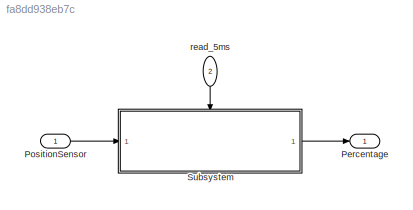
MODEL slx_fa8dd938eb7c
KIND model
CONFIG AbsTol = auto
CONFIG EnableMultiTasking = off
CONFIG FixedStep = 0.005
CONFIG MaxStep = auto
CONFIG MinStep = auto
CONFIG RelTol = 1e-3
CONFIG SampleTimeConstraint = Unconstrained
CONFIG SolverName = FixedStepDiscrete
CONFIG StartTime = 0.0
CONFIG StopTime = 10.0
WORKSPACE source: mxarray member
WORKSPACE TPSPercent_LkupTbl: Simulink.LookupTable (value not decoded)
BLOCK [Outport] Percentage
  OutDataTypeStr = single
  PortDimensions = 1
  SamplingMode = Sample based
  SignalType = real
BLOCK [Inport] PositionSensor
  OutDataTypeStr = uint16
  PortDimensions = 1
  SamplingMode = Sample based
  SignalType = real
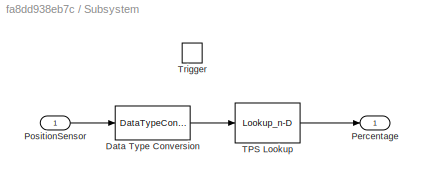
BLOCK [SubSystem] Subsystem
BLOCK [DataTypeConversion] Subsystem/Data Type Conversion
  OutDataTypeStr = single
  RndMeth = Floor
  SaturateOnIntegerOverflow = off
BLOCK [Outport] Subsystem/Percentage
BLOCK [Inport] Subsystem/PositionSensor
BLOCK [Lookup_n-D] Subsystem/TPS Lookup
  BreakpointsForDimension1 = TPSPercentBkpt
  BreakpointsForDimension1DataTypeStr = single
  DataSpecification = Lookup table object
  ExtrapMethod = Clip
  IndexSearchMethod = Linear search
  InputPortMap = u0
  InternalRulePriority = Speed
  LookupTableObject = TPSPercent_LkupTbl
  NumberOfTableDimensions = 1
  OutDataTypeStr = single
  RndMeth = Simplest
  Table = TPSPercentTbl
  TableDataTypeStr = single
BLOCK [TriggerPort] Subsystem/Trigger
  PortDimensions = 1
  SampleTime = 0.005
  SampleTimeType = periodic
  StatesWhenEnabling = held
  TriggerType = function-call
  VariantControl = (inherit)
BLOCK [Inport] read_5ms
  NameLocation = left
  OutputFunctionCall = on
  Port = 2
  SampleTime = 0.01
LINE PositionSensor:1 -> Subsystem:1
LINE Subsystem/Data Type Conversion:1 -> Subsystem/TPS Lookup:1
LINE Subsystem/PositionSensor:1 -> Subsystem/Data Type Conversion:1
LINE Subsystem/TPS Lookup:1 -> Subsystem/Percentage:1
LINE Subsystem:1 -> Percentage:1
LINE read_5ms:1 -> Subsystem:trigger
